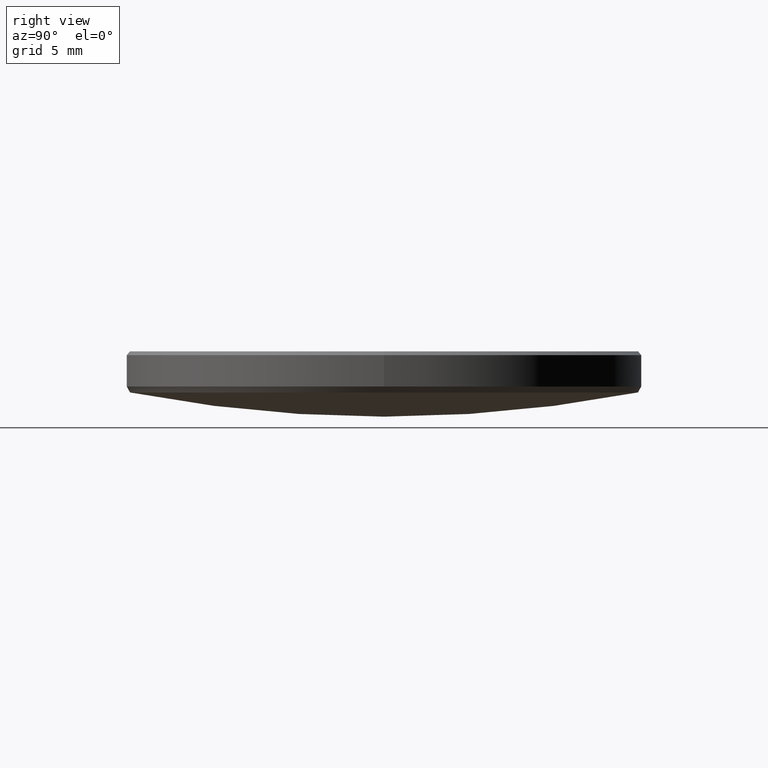
[diagram: clean part render]
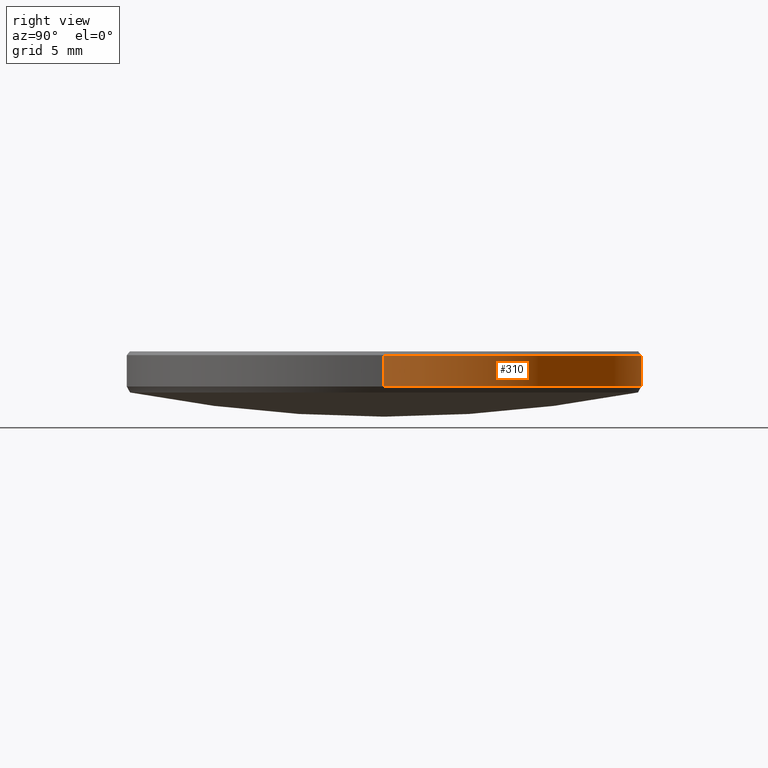
[diagram: same view with one face highlighted and labeled with its STEP entity id]
A machine part, right view. The second image highlights one B-rep face of the part: STEP entity #310.
In plain terms, the highlighted cylindrical surface (partial cylindrical patch) has radius 12.7 mm, axis along (-0, -0, -1).
Its self-contained STEP definition (entity closure, byte-faithful):
#12 = DIRECTION ( 'NONE',  ( -1.000000000000000000, 0.000000000000000000, 0.000000000000000000 ) ) ;
#16 = CYLINDRICAL_SURFACE ( 'NONE', #160, 12.69999999999999929 ) ;
#41 = DIRECTION ( 'NONE',  ( -0.000000000000000000, -0.000000000000000000, -1.000000000000000000 ) ) ;
#45 = ORIENTED_EDGE ( 'NONE', *, *, #207, .T. ) ;
#52 = CARTESIAN_POINT ( 'NONE',  ( -12.69999999999999929, 0.000000000000000000, 5.800000000000027356 ) ) ;
#66 = ORIENTED_EDGE ( 'NONE', *, *, #70, .F. ) ;
#69 = CIRCLE ( 'NONE', #77, 12.69999999999999929 ) ;
#70 = EDGE_CURVE ( 'NONE', #106, #181, #205, .T. ) ;
#71 = CARTESIAN_POINT ( 'NONE',  ( -12.69999999999999929, 0.000000000000000000, 10.00000000000000000 ) ) ;
#77 = AXIS2_PLACEMENT_3D ( 'NONE', #163, #240, #239 ) ;
#88 = DIRECTION ( 'NONE',  ( -1.000000000000000000, 0.000000000000000000, 0.000000000000000000 ) ) ;
#101 = CIRCLE ( 'NONE', #271, 12.69999999999999929 ) ;
#106 = VERTEX_POINT ( 'NONE', #52 ) ;
#117 = FACE_OUTER_BOUND ( 'NONE', #215, .T. ) ;
#130 = EDGE_CURVE ( 'NONE', #166, #181, #101, .T. ) ;
#141 = CARTESIAN_POINT ( 'NONE',  ( -12.69999999999999929, 0.000000000000000000, 4.253353967830220128 ) ) ;
#142 = ORIENTED_EDGE ( 'NONE', *, *, #130, .T. ) ;
#160 = AXIS2_PLACEMENT_3D ( 'NONE', #216, #322, #88 ) ;
#163 = CARTESIAN_POINT ( 'NONE',  ( 0.000000000000000000, 0.000000000000000000, 5.800000000000027356 ) ) ;
#166 = VERTEX_POINT ( 'NONE', #168 ) ;
#167 = CARTESIAN_POINT ( 'NONE',  ( 12.69999999999999929, 1.555301434917138433E-15, 10.00000000000000000 ) ) ;
#168 = CARTESIAN_POINT ( 'NONE',  ( 12.69999999999999929, 1.555301434917138433E-15, 4.253353967830220128 ) ) ;
#172 = DIRECTION ( 'NONE',  ( -0.000000000000000000, -0.000000000000000000, -1.000000000000000000 ) ) ;
#181 = VERTEX_POINT ( 'NONE', #141 ) ;
#205 = LINE ( 'NONE', #71, #242 ) ;
#207 = EDGE_CURVE ( 'NONE', #106, #217, #69, .T. ) ;
#215 = EDGE_LOOP ( 'NONE', ( #45, #311, #142, #66 ) ) ;
#216 = CARTESIAN_POINT ( 'NONE',  ( 0.000000000000000000, 0.000000000000000000, 10.00000000000000000 ) ) ;
#217 = VERTEX_POINT ( 'NONE', #320 ) ;
#239 = DIRECTION ( 'NONE',  ( 1.000000000000000000, 0.000000000000000000, 0.000000000000000000 ) ) ;
#240 = DIRECTION ( 'NONE',  ( 0.000000000000000000, 0.000000000000000000, -1.000000000000000000 ) ) ;
#242 = VECTOR ( 'NONE', #172, 1000.000000000000000 ) ;
#261 = DIRECTION ( 'NONE',  ( -0.000000000000000000, -0.000000000000000000, 1.000000000000000000 ) ) ;
#271 = AXIS2_PLACEMENT_3D ( 'NONE', #290, #261, #12 ) ;
#285 = EDGE_CURVE ( 'NONE', #217, #166, #331, .T. ) ;
#290 = CARTESIAN_POINT ( 'NONE',  ( 0.000000000000000000, 0.000000000000000000, 4.253353967830220128 ) ) ;
#310 = ADVANCED_FACE ( 'NONE', ( #117 ), #16, .T. ) ;
#311 = ORIENTED_EDGE ( 'NONE', *, *, #285, .T. ) ;
#319 = VECTOR ( 'NONE', #41, 1000.000000000000000 ) ;
#320 = CARTESIAN_POINT ( 'NONE',  ( 12.69999999999999929, 1.555301434917138433E-15, 5.800000000000027356 ) ) ;
#322 = DIRECTION ( 'NONE',  ( -0.000000000000000000, -0.000000000000000000, -1.000000000000000000 ) ) ;
#331 = LINE ( 'NONE', #167, #319 ) ;